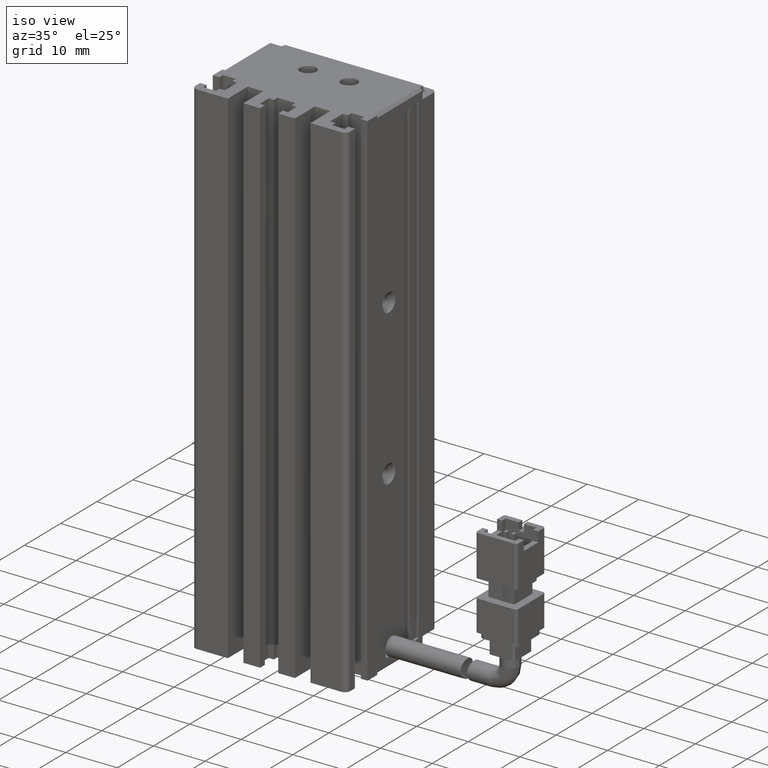
[diagram: clean part render]
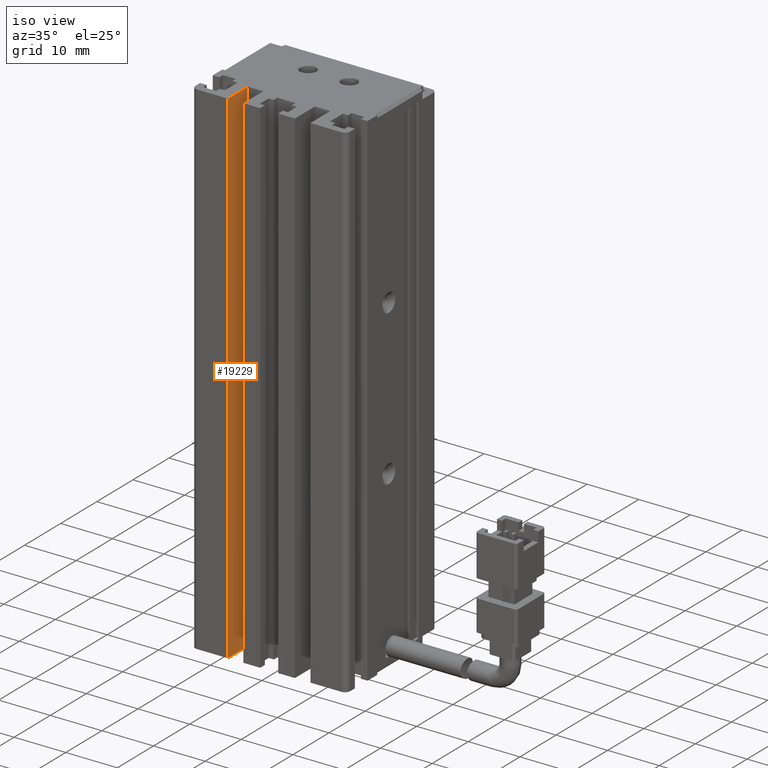
[diagram: same view with one face highlighted and labeled with its STEP entity id]
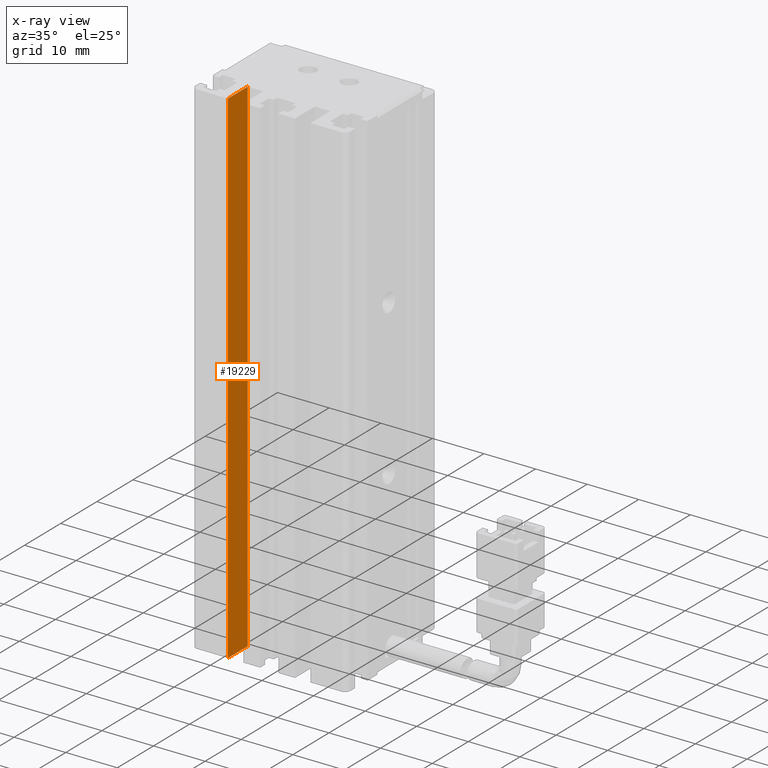
[diagram: x-ray of the same camera — body ghosted, the highlighted face saturated]
A machine part, iso view. The second image highlights one B-rep face of the part: STEP entity #19229.
The next image is the same camera in x-ray: the body ghosted, the highlighted face saturated — about 0% of this face is hidden behind the body in this view.
In plain terms, the highlighted planar face has unit normal (-1, 0, 0).
Its self-contained STEP definition (entity closure, byte-faithful):
#441 = VERTEX_POINT ( 'NONE', #20932 ) ;
#1997 = VERTEX_POINT ( 'NONE', #31208 ) ;
#2277 = LINE ( 'NONE', #12219, #20722 ) ;
#3660 = VERTEX_POINT ( 'NONE', #27707 ) ;
#7109 = DIRECTION ( 'NONE',  ( 0.0000000000000000000, -0.0000000000000000000, 1.000000000000000000 ) ) ;
#8614 = CARTESIAN_POINT ( 'NONE',  ( 32.92537974683543200, 7.083797468354437600, -66.00000000000000000 ) ) ;
#8747 = DIRECTION ( 'NONE',  ( 0.0000000000000000000, 0.0000000000000000000, 1.000000000000000000 ) ) ;
#8845 = CARTESIAN_POINT ( 'NONE',  ( 32.92537974683543200, 10.69594479660386800, -66.00000000000000000 ) ) ;
#9760 = VECTOR ( 'NONE', #23977, 1000.000000000000000 ) ;
#9884 = EDGE_LOOP ( 'NONE', ( #13209, #16484, #14396, #14522 ) ) ;
#11069 = DIRECTION ( 'NONE',  ( 0.0000000000000000000, 0.0000000000000000000, 1.000000000000000000 ) ) ;
#12219 = CARTESIAN_POINT ( 'NONE',  ( 32.92537974683543200, 7.083797468354437600, -164.0000000000000000 ) ) ;
#12328 = DIRECTION ( 'NONE',  ( 0.0000000000000000000, 1.000000000000000000, -0.0000000000000000000 ) ) ;
#12767 = EDGE_CURVE ( 'NONE', #1997, #441, #28972, .T. ) ;
#13209 = ORIENTED_EDGE ( 'NONE', *, *, #14104, .T. ) ;
#14104 = EDGE_CURVE ( 'NONE', #3660, #441, #19567, .T. ) ;
#14396 = ORIENTED_EDGE ( 'NONE', *, *, #15099, .F. ) ;
#14522 = ORIENTED_EDGE ( 'NONE', *, *, #16927, .T. ) ;
#14943 = AXIS2_PLACEMENT_3D ( 'NONE', #8614, #25454, #11069 ) ;
#15099 = EDGE_CURVE ( 'NONE', #19283, #1997, #18632, .T. ) ;
#16484 = ORIENTED_EDGE ( 'NONE', *, *, #12767, .F. ) ;
#16927 = EDGE_CURVE ( 'NONE', #19283, #3660, #2277, .T. ) ;
#18632 = LINE ( 'NONE', #8845, #25081 ) ;
#19229 = ADVANCED_FACE ( 'NONE', ( #22820 ), #20485, .F. ) ;
#19283 = VERTEX_POINT ( 'NONE', #23207 ) ;
#19567 = LINE ( 'NONE', #23931, #27497 ) ;
#20485 = PLANE ( 'NONE',  #14943 ) ;
#20722 = VECTOR ( 'NONE', #12328, 1000.000000000000000 ) ;
#20932 = CARTESIAN_POINT ( 'NONE',  ( 32.92537974683543200, 16.19594479660386500, -66.00000000000000000 ) ) ;
#21549 = CARTESIAN_POINT ( 'NONE',  ( 32.92537974683543200, 7.083797468354437600, -66.00000000000000000 ) ) ;
#22820 = FACE_OUTER_BOUND ( 'NONE', #9884, .T. ) ;
#23207 = CARTESIAN_POINT ( 'NONE',  ( 32.92537974683543200, 10.69594479660386800, -164.0000000000000000 ) ) ;
#23931 = CARTESIAN_POINT ( 'NONE',  ( 32.92537974683543200, 16.19594479660386500, -66.00000000000000000 ) ) ;
#23977 = DIRECTION ( 'NONE',  ( 0.0000000000000000000, 1.000000000000000000, -0.0000000000000000000 ) ) ;
#25081 = VECTOR ( 'NONE', #8747, 1000.000000000000000 ) ;
#25454 = DIRECTION ( 'NONE',  ( -1.000000000000000000, 0.0000000000000000000, 0.0000000000000000000 ) ) ;
#27497 = VECTOR ( 'NONE', #7109, 1000.000000000000000 ) ;
#27707 = CARTESIAN_POINT ( 'NONE',  ( 32.92537974683543200, 16.19594479660386500, -164.0000000000000000 ) ) ;
#28972 = LINE ( 'NONE', #21549, #9760 ) ;
#31208 = CARTESIAN_POINT ( 'NONE',  ( 32.92537974683543200, 10.69594479660386800, -66.00000000000000000 ) ) ;